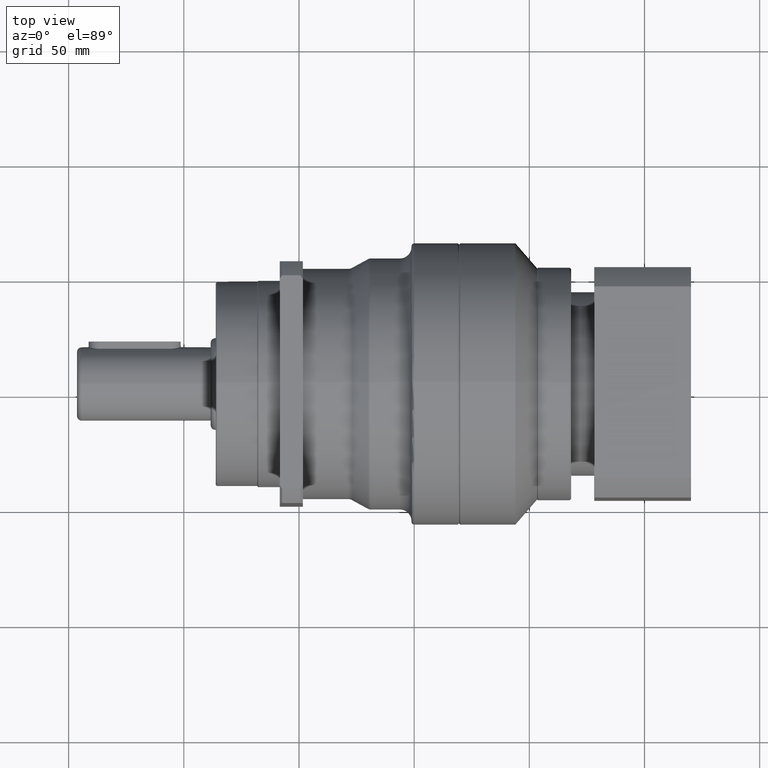
[diagram: clean part render]
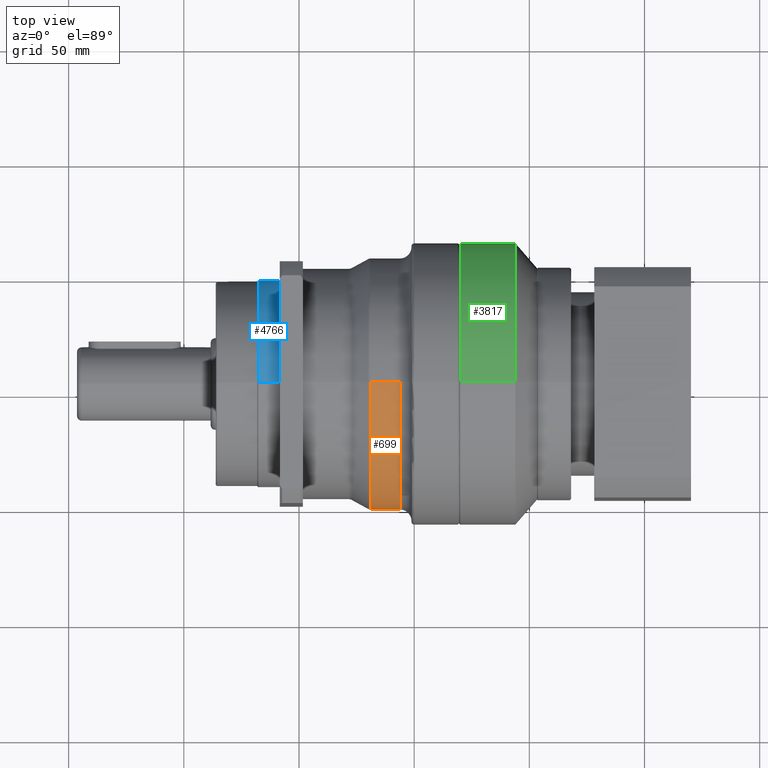
[diagram: same view with three faces highlighted in distinct colors, each labeled with its STEP entity id]
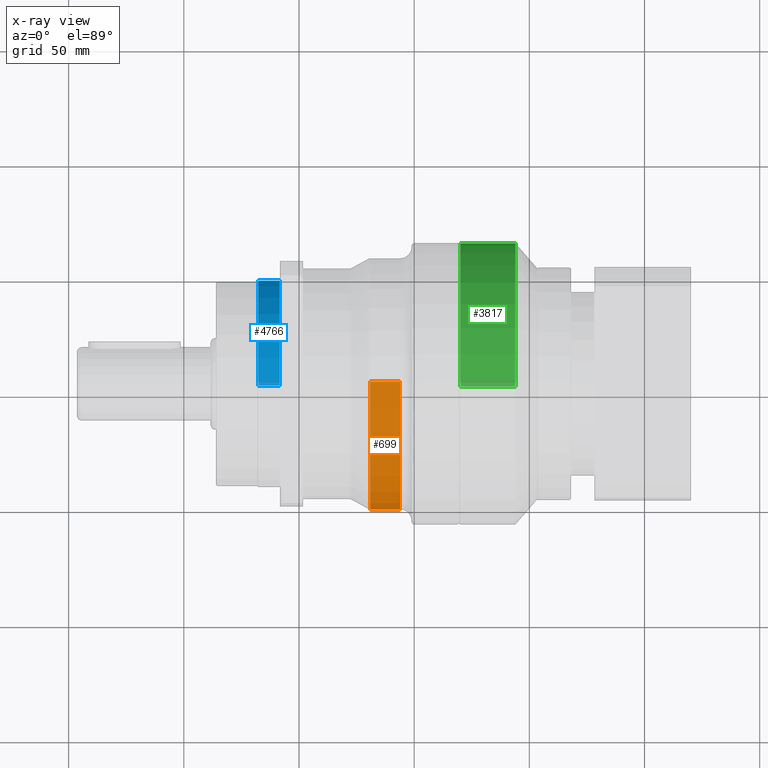
[diagram: x-ray of the same camera — body ghosted, the three highlighted faces saturated]
A machine part, top view with three faces highlighted in distinct colors.
The next image is the same camera in x-ray (body ghosted, the three faces saturated) — at least one of them is partly hidden behind the body in this view.
Their STEP definitions:

[orange] entity #699 — the highlighted cylindrical surface (partial cylindrical patch) has radius 54.7 mm, axis along (-1, -0, -0).
#142 = CARTESIAN_POINT ( 'NONE',  ( 3.651376329708235300, 4.633161260266394500, 54.69999999996602500 ) ) ;
#157 = ORIENTED_EDGE ( 'NONE', *, *, #3264, .T. ) ;
#259 = VERTEX_POINT ( 'NONE', #4941 ) ;
#577 = DIRECTION ( 'NONE',  ( -1.000000000000000000, -0.0000000000000000000, -0.0000000000000000000 ) ) ;
#699 = ADVANCED_FACE ( 'NONE', ( #5150 ), #3836, .T. ) ;
#739 = AXIS2_PLACEMENT_3D ( 'NONE', #4843, #3589, #5211 ) ;
#811 = EDGE_CURVE ( 'NONE', #4042, #4521, #1498, .T. ) ;
#882 = DIRECTION ( 'NONE',  ( 0.0000000000000000000, 0.0000000000000000000, 1.000000000000000000 ) ) ;
#915 = EDGE_CURVE ( 'NONE', #5063, #4042, #1937, .T. ) ;
#1249 = LINE ( 'NONE', #142, #5027 ) ;
#1338 = ORIENTED_EDGE ( 'NONE', *, *, #4828, .T. ) ;
#1498 = CIRCLE ( 'NONE', #739, 54.69999999996601800 ) ;
#1937 = LINE ( 'NONE', #2050, #4907 ) ;
#1950 = AXIS2_PLACEMENT_3D ( 'NONE', #2199, #577, #882 ) ;
#2050 = CARTESIAN_POINT ( 'NONE',  ( 3.651376329708235300, 4.633161260266401600, -54.69999999996602500 ) ) ;
#2199 = CARTESIAN_POINT ( 'NONE',  ( 143.8355272907414000, 4.633161260266394500, 0.0000000000000000000 ) ) ;
#2255 = DIRECTION ( 'NONE',  ( 0.0000000000000000000, 0.0000000000000000000, 1.000000000000000000 ) ) ;
#2535 = ORIENTED_EDGE ( 'NONE', *, *, #915, .F. ) ;
#2664 = AXIS2_PLACEMENT_3D ( 'NONE', #4705, #5108, #2255 ) ;
#3077 = CARTESIAN_POINT ( 'NONE',  ( 131.0340893859459500, 4.633161260266394500, 54.69999999996601800 ) ) ;
#3264 = EDGE_CURVE ( 'NONE', #5063, #259, #3622, .T. ) ;
#3279 = DIRECTION ( 'NONE',  ( -1.000000000000000000, -0.0000000000000000000, -0.0000000000000000000 ) ) ;
#3335 = EDGE_LOOP ( 'NONE', ( #2535, #157, #1338, #3554 ) ) ;
#3404 = DIRECTION ( 'NONE',  ( -1.000000000000000000, -0.0000000000000000000, -0.0000000000000000000 ) ) ;
#3554 = ORIENTED_EDGE ( 'NONE', *, *, #811, .F. ) ;
#3589 = DIRECTION ( 'NONE',  ( -1.000000000000000000, -0.0000000000000000000, -0.0000000000000000000 ) ) ;
#3622 = CIRCLE ( 'NONE', #1950, 54.69999999996603200 ) ;
#3836 = CYLINDRICAL_SURFACE ( 'NONE', #2664, 54.69999999996602500 ) ;
#4042 = VERTEX_POINT ( 'NONE', #5152 ) ;
#4521 = VERTEX_POINT ( 'NONE', #3077 ) ;
#4705 = CARTESIAN_POINT ( 'NONE',  ( 3.651376329708235300, 4.633161260266394500, 0.0000000000000000000 ) ) ;
#4749 = CARTESIAN_POINT ( 'NONE',  ( 143.8355272907414000, 4.633161260266402500, -54.69999999996603200 ) ) ;
#4828 = EDGE_CURVE ( 'NONE', #259, #4521, #1249, .T. ) ;
#4843 = CARTESIAN_POINT ( 'NONE',  ( 131.0340893859459500, 4.633161260266394500, 0.0000000000000000000 ) ) ;
#4907 = VECTOR ( 'NONE', #3279, 1000.000000000000000 ) ;
#4941 = CARTESIAN_POINT ( 'NONE',  ( 143.8355272907414000, 4.633161260266394500, 54.69999999996603200 ) ) ;
#5027 = VECTOR ( 'NONE', #3404, 1000.000000000000000 ) ;
#5063 = VERTEX_POINT ( 'NONE', #4749 ) ;
#5108 = DIRECTION ( 'NONE',  ( -1.000000000000000000, -0.0000000000000000000, -0.0000000000000000000 ) ) ;
#5150 = FACE_OUTER_BOUND ( 'NONE', #3335, .T. ) ;
#5152 = CARTESIAN_POINT ( 'NONE',  ( 131.0340893859459500, 4.633161260266401600, -54.69999999996601800 ) ) ;
#5211 = DIRECTION ( 'NONE',  ( 0.0000000000000000000, 0.0000000000000000000, 1.000000000000000000 ) ) ;

[blue] entity #4766 — the highlighted cylindrical surface (partial cylindrical patch) has radius 45 mm, axis along (-1, -0, -0).
#1 = LINE ( 'NONE', #4581, #317 ) ;
#11 = CARTESIAN_POINT ( 'NONE',  ( 82.35137632970827300, 4.633161260266394500, 0.0000000000000000000 ) ) ;
#24 = ORIENTED_EDGE ( 'NONE', *, *, #4229, .F. ) ;
#271 = VERTEX_POINT ( 'NONE', #3528 ) ;
#317 = VECTOR ( 'NONE', #545, 1000.000000000000000 ) ;
#341 = DIRECTION ( 'NONE',  ( -1.000000000000000000, -0.0000000000000000000, -0.0000000000000000000 ) ) ;
#367 = DIRECTION ( 'NONE',  ( 0.0000000000000000000, 0.0000000000000000000, 1.000000000000000000 ) ) ;
#474 = EDGE_CURVE ( 'NONE', #271, #3631, #3393, .T. ) ;
#545 = DIRECTION ( 'NONE',  ( -1.000000000000000000, -0.0000000000000000000, -0.0000000000000000000 ) ) ;
#556 = CARTESIAN_POINT ( 'NONE',  ( 3.651376329708235300, 4.633161260266399900, -45.00000000029347500 ) ) ;
#974 = VERTEX_POINT ( 'NONE', #2102 ) ;
#1011 = AXIS2_PLACEMENT_3D ( 'NONE', #2781, #341, #3983 ) ;
#1112 = CIRCLE ( 'NONE', #1011, 45.00000000029347500 ) ;
#1122 = VECTOR ( 'NONE', #3347, 1000.000000000000000 ) ;
#1225 = DIRECTION ( 'NONE',  ( 0.0000000000000000000, 0.0000000000000000000, 1.000000000000000000 ) ) ;
#1566 = CARTESIAN_POINT ( 'NONE',  ( 91.67137632970798200, 4.633161260266399900, -45.00000000029347500 ) ) ;
#1657 = ORIENTED_EDGE ( 'NONE', *, *, #474, .F. ) ;
#1762 = EDGE_LOOP ( 'NONE', ( #4755, #2921, #1657, #24 ) ) ;
#1920 = EDGE_CURVE ( 'NONE', #974, #4646, #1112, .T. ) ;
#2064 = FACE_OUTER_BOUND ( 'NONE', #1762, .T. ) ;
#2102 = CARTESIAN_POINT ( 'NONE',  ( 91.67137632970798200, 4.633161260266394500, 45.00000000029347500 ) ) ;
#2781 = CARTESIAN_POINT ( 'NONE',  ( 91.67137632970798200, 4.633161260266394500, 0.0000000000000000000 ) ) ;
#2829 = CARTESIAN_POINT ( 'NONE',  ( 82.35137632970827300, 4.633161260266399900, -45.00000000029347500 ) ) ;
#2921 = ORIENTED_EDGE ( 'NONE', *, *, #4859, .T. ) ;
#3121 = CYLINDRICAL_SURFACE ( 'NONE', #5119, 45.00000000029347500 ) ;
#3314 = DIRECTION ( 'NONE',  ( -1.000000000000000000, -0.0000000000000000000, -0.0000000000000000000 ) ) ;
#3347 = DIRECTION ( 'NONE',  ( -1.000000000000000000, -0.0000000000000000000, -0.0000000000000000000 ) ) ;
#3393 = CIRCLE ( 'NONE', #3627, 45.00000000029347500 ) ;
#3528 = CARTESIAN_POINT ( 'NONE',  ( 82.35137632970827300, 4.633161260266394500, 45.00000000029347500 ) ) ;
#3627 = AXIS2_PLACEMENT_3D ( 'NONE', #11, #4009, #367 ) ;
#3631 = VERTEX_POINT ( 'NONE', #2829 ) ;
#3660 = CARTESIAN_POINT ( 'NONE',  ( 3.651376329708235300, 4.633161260266394500, 0.0000000000000000000 ) ) ;
#3983 = DIRECTION ( 'NONE',  ( 0.0000000000000000000, 0.0000000000000000000, 1.000000000000000000 ) ) ;
#4009 = DIRECTION ( 'NONE',  ( -1.000000000000000000, -0.0000000000000000000, -0.0000000000000000000 ) ) ;
#4227 = LINE ( 'NONE', #556, #1122 ) ;
#4229 = EDGE_CURVE ( 'NONE', #974, #271, #1, .T. ) ;
#4581 = CARTESIAN_POINT ( 'NONE',  ( 3.651376329708235300, 4.633161260266394500, 45.00000000029347500 ) ) ;
#4646 = VERTEX_POINT ( 'NONE', #1566 ) ;
#4755 = ORIENTED_EDGE ( 'NONE', *, *, #1920, .T. ) ;
#4766 = ADVANCED_FACE ( 'NONE', ( #2064 ), #3121, .T. ) ;
#4859 = EDGE_CURVE ( 'NONE', #4646, #3631, #4227, .T. ) ;
#5119 = AXIS2_PLACEMENT_3D ( 'NONE', #3660, #3314, #1225 ) ;

[green] entity #3817 — the highlighted cylindrical surface (partial cylindrical patch) has radius 61.0358 mm, axis along (-1, -0, -0).
#38 = AXIS2_PLACEMENT_3D ( 'NONE', #2194, #2589, #1025 ) ;
#159 = VERTEX_POINT ( 'NONE', #4161 ) ;
#205 = AXIS2_PLACEMENT_3D ( 'NONE', #3931, #236, #3861 ) ;
#236 = DIRECTION ( 'NONE',  ( -1.000000000000000000, -0.0000000000000000000, -0.0000000000000000000 ) ) ;
#624 = CARTESIAN_POINT ( 'NONE',  ( 169.9954353272683200, 4.633161260266402500, -61.03578160958026900 ) ) ;
#1019 = DIRECTION ( 'NONE',  ( -1.000000000000000000, -0.0000000000000000000, -0.0000000000000000000 ) ) ;
#1025 = DIRECTION ( 'NONE',  ( 0.0000000000000000000, 0.0000000000000000000, 1.000000000000000000 ) ) ;
#1095 = EDGE_CURVE ( 'NONE', #2524, #159, #2670, .T. ) ;
#1220 = ORIENTED_EDGE ( 'NONE', *, *, #2019, .F. ) ;
#1432 = AXIS2_PLACEMENT_3D ( 'NONE', #4199, #2121, #3371 ) ;
#1793 = VECTOR ( 'NONE', #2743, 1000.000000000000000 ) ;
#2019 = EDGE_CURVE ( 'NONE', #2524, #4811, #4712, .T. ) ;
#2121 = DIRECTION ( 'NONE',  ( -1.000000000000000000, -0.0000000000000000000, -0.0000000000000000000 ) ) ;
#2194 = CARTESIAN_POINT ( 'NONE',  ( 3.651376329708235300, 4.633161260266394500, 0.0000000000000000000 ) ) ;
#2524 = VERTEX_POINT ( 'NONE', #3513 ) ;
#2589 = DIRECTION ( 'NONE',  ( -1.000000000000000000, -0.0000000000000000000, -0.0000000000000000000 ) ) ;
#2670 = CIRCLE ( 'NONE', #1432, 61.03578160958027600 ) ;
#2689 = CIRCLE ( 'NONE', #205, 61.03578160958026900 ) ;
#2719 = VECTOR ( 'NONE', #1019, 1000.000000000000000 ) ;
#2743 = DIRECTION ( 'NONE',  ( -1.000000000000000000, -0.0000000000000000000, -0.0000000000000000000 ) ) ;
#3190 = CARTESIAN_POINT ( 'NONE',  ( 3.651376329708235300, 4.633161260266394500, 61.03578160958026900 ) ) ;
#3268 = CYLINDRICAL_SURFACE ( 'NONE', #38, 61.03578160958026900 ) ;
#3360 = EDGE_CURVE ( 'NONE', #159, #4932, #4067, .T. ) ;
#3371 = DIRECTION ( 'NONE',  ( 0.0000000000000000000, 0.0000000000000000000, 1.000000000000000000 ) ) ;
#3513 = CARTESIAN_POINT ( 'NONE',  ( 193.9575191518874800, 4.633161260266394500, 61.03578160958027600 ) ) ;
#3770 = CARTESIAN_POINT ( 'NONE',  ( 169.9954353272683200, 4.633161260266394500, 61.03578160958026900 ) ) ;
#3817 = ADVANCED_FACE ( 'NONE', ( #4917 ), #3268, .T. ) ;
#3861 = DIRECTION ( 'NONE',  ( 0.0000000000000000000, 0.0000000000000000000, 1.000000000000000000 ) ) ;
#3931 = CARTESIAN_POINT ( 'NONE',  ( 169.9954353272683200, 4.633161260266394500, 0.0000000000000000000 ) ) ;
#3946 = EDGE_CURVE ( 'NONE', #4811, #4932, #2689, .T. ) ;
#4067 = LINE ( 'NONE', #5087, #2719 ) ;
#4161 = CARTESIAN_POINT ( 'NONE',  ( 193.9575191518874800, 4.633161260266402500, -61.03578160958027600 ) ) ;
#4199 = CARTESIAN_POINT ( 'NONE',  ( 193.9575191518874800, 4.633161260266394500, 0.0000000000000000000 ) ) ;
#4231 = ORIENTED_EDGE ( 'NONE', *, *, #3946, .F. ) ;
#4243 = ORIENTED_EDGE ( 'NONE', *, *, #1095, .T. ) ;
#4693 = ORIENTED_EDGE ( 'NONE', *, *, #3360, .T. ) ;
#4712 = LINE ( 'NONE', #3190, #1793 ) ;
#4811 = VERTEX_POINT ( 'NONE', #3770 ) ;
#4917 = FACE_OUTER_BOUND ( 'NONE', #4940, .T. ) ;
#4932 = VERTEX_POINT ( 'NONE', #624 ) ;
#4940 = EDGE_LOOP ( 'NONE', ( #4243, #4693, #4231, #1220 ) ) ;
#5087 = CARTESIAN_POINT ( 'NONE',  ( 3.651376329708235300, 4.633161260266402500, -61.03578160958026900 ) ) ;